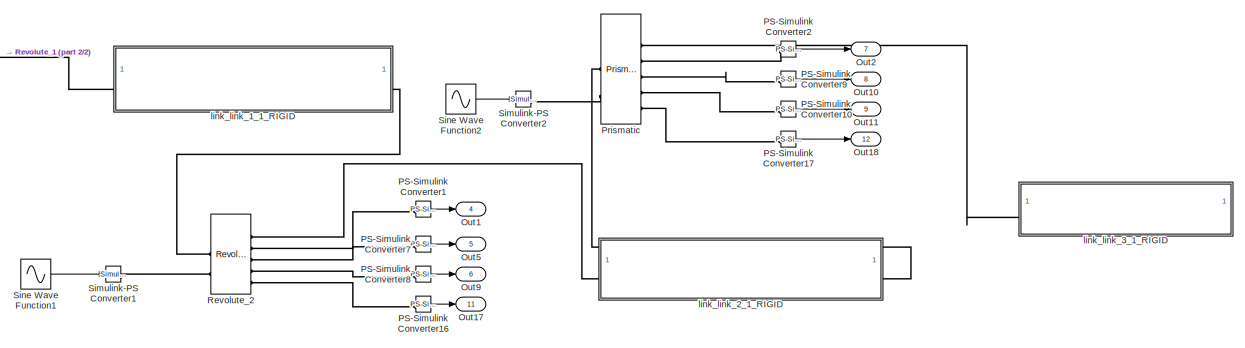
[diagram: root canvas - part 1/2, center side, full height]
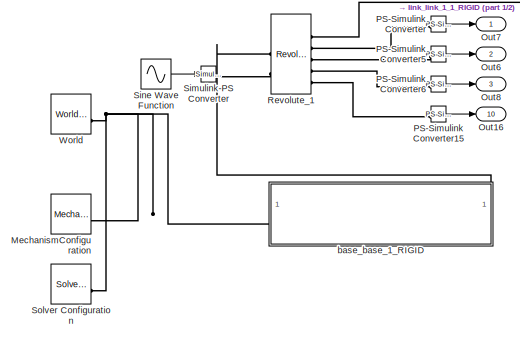
[diagram: root canvas - part 2/2, left side, full height]
MODEL slx_046f6a44515d
KIND model
CONFIG AbsTol = auto
CONFIG EnableMultiTasking = off
CONFIG FixedStep = 0.001
CONFIG MaxStep = auto
CONFIG MinStep = auto
CONFIG RelTol = 1e-3
CONFIG SampleTimeConstraint = Unconstrained
CONFIG SolverName = FixedStepAuto
CONFIG StartTime = 0.0
CONFIG StopTime = 10.0
WORKSPACE source: external: MATLAB File  (data not in archive)
BLOCK [Reference] MechanismConfiguration  REF=sm_lib/Utilities/Mechanism
Configuration
  SourceBlock = sm_lib/Utilities/Mechanism\nConfiguration
  SourceType = Mechanism\nConfiguration
BLOCK [Outport] Out1
  Port = 4
  SignalName = theta_2
BLOCK [Outport] Out10
  Port = 8
  SignalName = d_3_dot
BLOCK [Outport] Out11
  Port = 9
  SignalName = d_3_double_dot
BLOCK [Outport] Out16
  Port = 10
  SignalName = Tourqe_1
BLOCK [Outport] Out17
  Port = 11
  SignalName = Tourqe_2
BLOCK [Outport] Out18
  Port = 12
  SignalName = Force_3
BLOCK [Outport] Out2
  Port = 7
  SignalName = d_3
BLOCK [Outport] Out5
  Port = 5
  SignalName = theta_2_dot
BLOCK [Outport] Out6
  Port = 2
  SignalName = theta_1_dot
BLOCK [Outport] Out7
  SignalName = theta_1
BLOCK [Outport] Out8
  Port = 3
  SignalName = theta_1_double_dot
BLOCK [Outport] Out9
  Port = 6
  SignalName = theta_2_double_dot
BLOCK [Reference] PS-Simulink Converter  REF=nesl_utility/PS-Simulink
Converter
  SourceBlock = nesl_utility/PS-Simulink\nConverter
  SourceType = PS-Simulink\nConverter
BLOCK [Reference] PS-Simulink Converter1  REF=nesl_utility/PS-Simulink
Converter
  SourceBlock = nesl_utility/PS-Simulink\nConverter
  SourceType = PS-Simulink\nConverter
BLOCK [Reference] PS-Simulink Converter10  REF=nesl_utility/PS-Simulink
Converter
  SourceBlock = nesl_utility/PS-Simulink\nConverter
  SourceType = PS-Simulink\nConverter
BLOCK [Reference] PS-Simulink Converter15  REF=nesl_utility/PS-Simulink
Converter
  SourceBlock = nesl_utility/PS-Simulink\nConverter
  SourceType = PS-Simulink\nConverter
BLOCK [Reference] PS-Simulink Converter16  REF=nesl_utility/PS-Simulink
Converter
  SourceBlock = nesl_utility/PS-Simulink\nConverter
  SourceType = PS-Simulink\nConverter
BLOCK [Reference] PS-Simulink Converter17  REF=nesl_utility/PS-Simulink
Converter
  SourceBlock = nesl_utility/PS-Simulink\nConverter
  SourceType = PS-Simulink\nConverter
BLOCK [Reference] PS-Simulink Converter2  REF=nesl_utility/PS-Simulink
Converter
  SourceBlock = nesl_utility/PS-Simulink\nConverter
  SourceType = PS-Simulink\nConverter
BLOCK [Reference] PS-Simulink Converter5  REF=nesl_utility/PS-Simulink
Converter
  SourceBlock = nesl_utility/PS-Simulink\nConverter
  SourceType = PS-Simulink\nConverter
BLOCK [Reference] PS-Simulink Converter6  REF=nesl_utility/PS-Simulink
Converter
  SourceBlock = nesl_utility/PS-Simulink\nConverter
  SourceType = PS-Simulink\nConverter
BLOCK [Reference] PS-Simulink Converter7  REF=nesl_utility/PS-Simulink
Converter
  SourceBlock = nesl_utility/PS-Simulink\nConverter
  SourceType = PS-Simulink\nConverter
BLOCK [Reference] PS-Simulink Converter8  REF=nesl_utility/PS-Simulink
Converter
  SourceBlock = nesl_utility/PS-Simulink\nConverter
  SourceType = PS-Simulink\nConverter
BLOCK [Reference] PS-Simulink Converter9  REF=nesl_utility/PS-Simulink
Converter
  SourceBlock = nesl_utility/PS-Simulink\nConverter
  SourceType = PS-Simulink\nConverter
BLOCK [Reference] Prismatic  REF=sm_lib/Joints/Prismatic
Joint
  SourceBlock = sm_lib/Joints/Prismatic\nJoint
  SourceType = Prismatic\nJoint
BLOCK [Reference] Revolute_1  REF=sm_lib/Joints/Revolute Joint
  SourceBlock = sm_lib/Joints/Revolute Joint
  SourceType = Revolute Joint
BLOCK [Reference] Revolute_2  REF=sm_lib/Joints/Revolute Joint
  SourceBlock = sm_lib/Joints/Revolute Joint
  SourceType = Revolute Joint
BLOCK [Reference] Simulink-PS Converter  REF=nesl_utility/Simulink-PS
Converter
  SourceBlock = nesl_utility/Simulink-PS\nConverter
  SourceType = Simulink-PS\nConverter
BLOCK [Reference] Simulink-PS Converter1  REF=nesl_utility/Simulink-PS
Converter
  SourceBlock = nesl_utility/Simulink-PS\nConverter
  SourceType = Simulink-PS\nConverter
BLOCK [Reference] Simulink-PS Converter2  REF=nesl_utility/Simulink-PS
Converter
  SourceBlock = nesl_utility/Simulink-PS\nConverter
  SourceType = Simulink-PS\nConverter
BLOCK [Sin] Sine Wave Function
  Amplitude = 1.5*pi
  Frequency = 1.5
  SampleTime = 0
BLOCK [Sin] Sine Wave Function1
  Amplitude = 1.75*pi
  Frequency = 1.75
  SampleTime = 0
BLOCK [Sin] Sine Wave Function2
  Amplitude = 2*pi
  Frequency = 2
  SampleTime = 0
BLOCK [Reference] Solver Configuration  REF=nesl_utility/Solver
Configuration
  SourceBlock = nesl_utility/Solver\nConfiguration
  SourceType = Solver\nConfiguration
BLOCK [Reference] World  REF=sm_lib/Frames and
Transforms/World Frame
  SourceBlock = sm_lib/Frames and\nTransforms/World Frame
  SourceType = World Frame
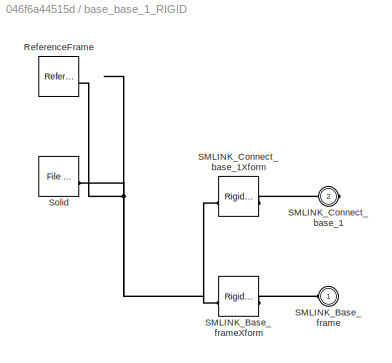
BLOCK [SubSystem] base_base_1_RIGID
BLOCK [Reference] base_base_1_RIGID/ReferenceFrame  REF=sm_lib/Frames and
Transforms/Reference
Frame
  SourceBlock = sm_lib/Frames and\nTransforms/Reference\nFrame
  SourceType = Reference\nFrame
BLOCK [PMIOPort] base_base_1_RIGID/SMLINK_Base_frame
  Side = Left
BLOCK [Reference] base_base_1_RIGID/SMLINK_Base_frameXform  REF=sm_lib/Frames and
Transforms/Rigid
Transform
  SourceBlock = sm_lib/Frames and\nTransforms/Rigid\nTransform
  SourceType = Rigid\nTransform
BLOCK [PMIOPort] base_base_1_RIGID/SMLINK_Connect_base_1
  Port = 2
  Side = Right
BLOCK [Reference] base_base_1_RIGID/SMLINK_Connect_base_1Xform  REF=sm_lib/Frames and
Transforms/Rigid
Transform
  SourceBlock = sm_lib/Frames and\nTransforms/Rigid\nTransform
  SourceType = Rigid\nTransform
BLOCK [Reference] base_base_1_RIGID/Solid  REF=sm_lib/Body Elements/File Solid
  SourceBlock = sm_lib/Body Elements/File Solid
  SourceType = File Solid
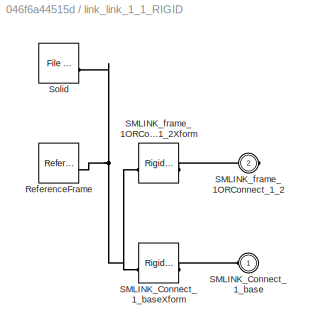
BLOCK [SubSystem] link_link_1_1_RIGID
BLOCK [Reference] link_link_1_1_RIGID/ReferenceFrame  REF=sm_lib/Frames and
Transforms/Reference
Frame
  SourceBlock = sm_lib/Frames and\nTransforms/Reference\nFrame
  SourceType = Reference\nFrame
BLOCK [PMIOPort] link_link_1_1_RIGID/SMLINK_Connect_1_base
  Side = Left
BLOCK [Reference] link_link_1_1_RIGID/SMLINK_Connect_1_baseXform  REF=sm_lib/Frames and
Transforms/Rigid
Transform
  SourceBlock = sm_lib/Frames and\nTransforms/Rigid\nTransform
  SourceType = Rigid\nTransform
BLOCK [PMIOPort] link_link_1_1_RIGID/SMLINK_frame_1ORConnect_1_2
  Port = 2
  Side = Right
BLOCK [Reference] link_link_1_1_RIGID/SMLINK_frame_1ORConnect_1_2Xform  REF=sm_lib/Frames and
Transforms/Rigid
Transform
  SourceBlock = sm_lib/Frames and\nTransforms/Rigid\nTransform
  SourceType = Rigid\nTransform
BLOCK [Reference] link_link_1_1_RIGID/Solid  REF=sm_lib/Body Elements/File Solid
  SourceBlock = sm_lib/Body Elements/File Solid
  SourceType = File Solid
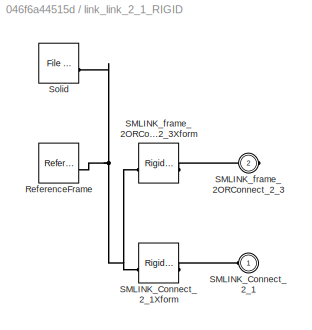
BLOCK [SubSystem] link_link_2_1_RIGID
BLOCK [Reference] link_link_2_1_RIGID/ReferenceFrame  REF=sm_lib/Frames and
Transforms/Reference
Frame
  SourceBlock = sm_lib/Frames and\nTransforms/Reference\nFrame
  SourceType = Reference\nFrame
BLOCK [PMIOPort] link_link_2_1_RIGID/SMLINK_Connect_2_1
  Side = Left
BLOCK [Reference] link_link_2_1_RIGID/SMLINK_Connect_2_1Xform  REF=sm_lib/Frames and
Transforms/Rigid
Transform
  SourceBlock = sm_lib/Frames and\nTransforms/Rigid\nTransform
  SourceType = Rigid\nTransform
BLOCK [PMIOPort] link_link_2_1_RIGID/SMLINK_frame_2ORConnect_2_3
  Port = 2
  Side = Right
BLOCK [Reference] link_link_2_1_RIGID/SMLINK_frame_2ORConnect_2_3Xform  REF=sm_lib/Frames and
Transforms/Rigid
Transform
  SourceBlock = sm_lib/Frames and\nTransforms/Rigid\nTransform
  SourceType = Rigid\nTransform
BLOCK [Reference] link_link_2_1_RIGID/Solid  REF=sm_lib/Body Elements/File Solid
  SourceBlock = sm_lib/Body Elements/File Solid
  SourceType = File Solid
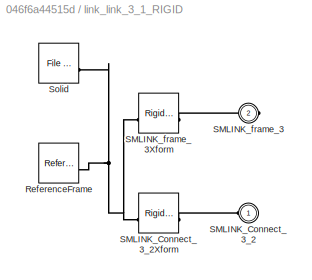
BLOCK [SubSystem] link_link_3_1_RIGID
BLOCK [Reference] link_link_3_1_RIGID/ReferenceFrame  REF=sm_lib/Frames and
Transforms/Reference
Frame
  SourceBlock = sm_lib/Frames and\nTransforms/Reference\nFrame
  SourceType = Reference\nFrame
BLOCK [PMIOPort] link_link_3_1_RIGID/SMLINK_Connect_3_2
  Side = Left
BLOCK [Reference] link_link_3_1_RIGID/SMLINK_Connect_3_2Xform  REF=sm_lib/Frames and
Transforms/Rigid
Transform
  SourceBlock = sm_lib/Frames and\nTransforms/Rigid\nTransform
  SourceType = Rigid\nTransform
BLOCK [PMIOPort] link_link_3_1_RIGID/SMLINK_frame_3
  Port = 2
  Side = Right
BLOCK [Reference] link_link_3_1_RIGID/SMLINK_frame_3Xform  REF=sm_lib/Frames and
Transforms/Rigid
Transform
  SourceBlock = sm_lib/Frames and\nTransforms/Rigid\nTransform
  SourceType = Rigid\nTransform
BLOCK [Reference] link_link_3_1_RIGID/Solid  REF=sm_lib/Body Elements/File Solid
  SourceBlock = sm_lib/Body Elements/File Solid
  SourceType = File Solid
LINE PS-Simulink Converter10:1 -> Out11:1
LINE PS-Simulink Converter15:1 -> Out16:1
LINE PS-Simulink Converter16:1 -> Out17:1
LINE PS-Simulink Converter17:1 -> Out18:1
LINE PS-Simulink Converter1:1 -> Out1:1
LINE PS-Simulink Converter2:1 -> Out2:1
LINE PS-Simulink Converter5:1 -> Out6:1
LINE PS-Simulink Converter6:1 -> Out8:1
LINE PS-Simulink Converter7:1 -> Out5:1
LINE PS-Simulink Converter8:1 -> Out9:1
LINE PS-Simulink Converter9:1 -> Out10:1
LINE PS-Simulink Converter:1 -> Out7:1
LINE Sine Wave Function1:1 -> Simulink-PS Converter1:1
LINE Sine Wave Function2:1 -> Simulink-PS Converter2:1
LINE Sine Wave Function:1 -> Simulink-PS Converter:1
PNET net1: MechanismConfiguration:RConn1 -- Solver Configuration:RConn1 -- World:RConn1 -- base_base_1_RIGID:LConn1
PLINE PS-Simulink Converter10:LConn1 -- Prismatic:RConn4
PLINE PS-Simulink Converter15:LConn1 -- Revolute_1:RConn5
PLINE PS-Simulink Converter16:LConn1 -- Revolute_2:RConn5
PLINE PS-Simulink Converter17:LConn1 -- Prismatic:RConn5
PLINE PS-Simulink Converter1:LConn1 -- Revolute_2:RConn2
PLINE PS-Simulink Converter2:LConn1 -- Prismatic:RConn2
PLINE PS-Simulink Converter5:LConn1 -- Revolute_1:RConn3
PLINE PS-Simulink Converter6:LConn1 -- Revolute_1:RConn4
PLINE PS-Simulink Converter7:LConn1 -- Revolute_2:RConn3
PLINE PS-Simulink Converter8:LConn1 -- Revolute_2:RConn4
PLINE PS-Simulink Converter9:LConn1 -- Prismatic:RConn3
PLINE PS-Simulink Converter:LConn1 -- Revolute_1:RConn2
PLINE Prismatic:LConn1 -- link_link_2_1_RIGID:RConn1
PLINE Prismatic:LConn2 -- Simulink-PS Converter2:RConn1
PLINE Prismatic:RConn1 -- link_link_3_1_RIGID:LConn1
PLINE Revolute_1:LConn1 -- base_base_1_RIGID:RConn1
PLINE Revolute_1:LConn2 -- Simulink-PS Converter:RConn1
PLINE Revolute_1:RConn1 -- link_link_1_1_RIGID:LConn1
PLINE Revolute_2:LConn1 -- link_link_1_1_RIGID:RConn1
PLINE Revolute_2:LConn2 -- Simulink-PS Converter1:RConn1
PLINE Revolute_2:RConn1 -- link_link_2_1_RIGID:LConn1
PNET net2: base_base_1_RIGID/ReferenceFrame:RConn1 -- base_base_1_RIGID/SMLINK_Base_frameXform:LConn1 -- base_base_1_RIGID/SMLINK_Connect_base_1Xform:LConn1 -- base_base_1_RIGID/Solid:RConn1
PLINE base_base_1_RIGID/SMLINK_Base_frame:RConn1 -- base_base_1_RIGID/SMLINK_Base_frameXform:RConn1
PLINE base_base_1_RIGID/SMLINK_Connect_base_1:RConn1 -- base_base_1_RIGID/SMLINK_Connect_base_1Xform:RConn1
PNET net3: link_link_1_1_RIGID/ReferenceFrame:RConn1 -- link_link_1_1_RIGID/SMLINK_Connect_1_baseXform:LConn1 -- link_link_1_1_RIGID/SMLINK_frame_1ORConnect_1_2Xform:LConn1 -- link_link_1_1_RIGID/Solid:RConn1
PLINE link_link_1_1_RIGID/SMLINK_Connect_1_base:RConn1 -- link_link_1_1_RIGID/SMLINK_Connect_1_baseXform:RConn1
PLINE link_link_1_1_RIGID/SMLINK_frame_1ORConnect_1_2:RConn1 -- link_link_1_1_RIGID/SMLINK_frame_1ORConnect_1_2Xform:RConn1
PNET net4: link_link_2_1_RIGID/ReferenceFrame:RConn1 -- link_link_2_1_RIGID/SMLINK_Connect_2_1Xform:LConn1 -- link_link_2_1_RIGID/SMLINK_frame_2ORConnect_2_3Xform:LConn1 -- link_link_2_1_RIGID/Solid:RConn1
PLINE link_link_2_1_RIGID/SMLINK_Connect_2_1:RConn1 -- link_link_2_1_RIGID/SMLINK_Connect_2_1Xform:RConn1
PLINE link_link_2_1_RIGID/SMLINK_frame_2ORConnect_2_3:RConn1 -- link_link_2_1_RIGID/SMLINK_frame_2ORConnect_2_3Xform:RConn1
PNET net5: link_link_3_1_RIGID/ReferenceFrame:RConn1 -- link_link_3_1_RIGID/SMLINK_Connect_3_2Xform:LConn1 -- link_link_3_1_RIGID/SMLINK_frame_3Xform:LConn1 -- link_link_3_1_RIGID/Solid:RConn1
PLINE link_link_3_1_RIGID/SMLINK_Connect_3_2:RConn1 -- link_link_3_1_RIGID/SMLINK_Connect_3_2Xform:RConn1
PLINE link_link_3_1_RIGID/SMLINK_frame_3:RConn1 -- link_link_3_1_RIGID/SMLINK_frame_3Xform:RConn1
note: PNET lines group multi-terminal physical nets as a canonical sorted terminal list (undirected conserving connections); 2-terminal nets keep the pairwise PLINE form
